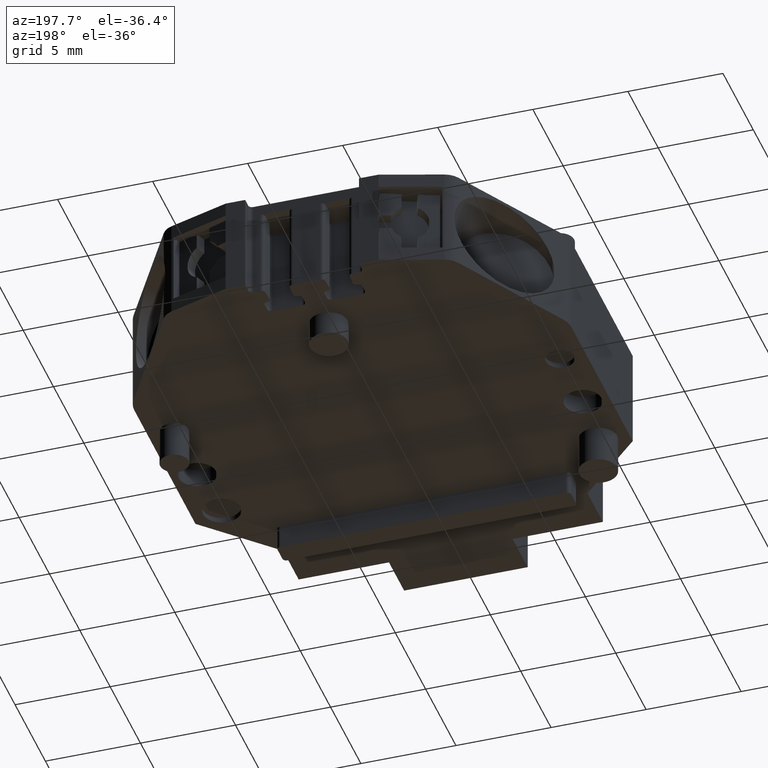
[diagram: clean part render]
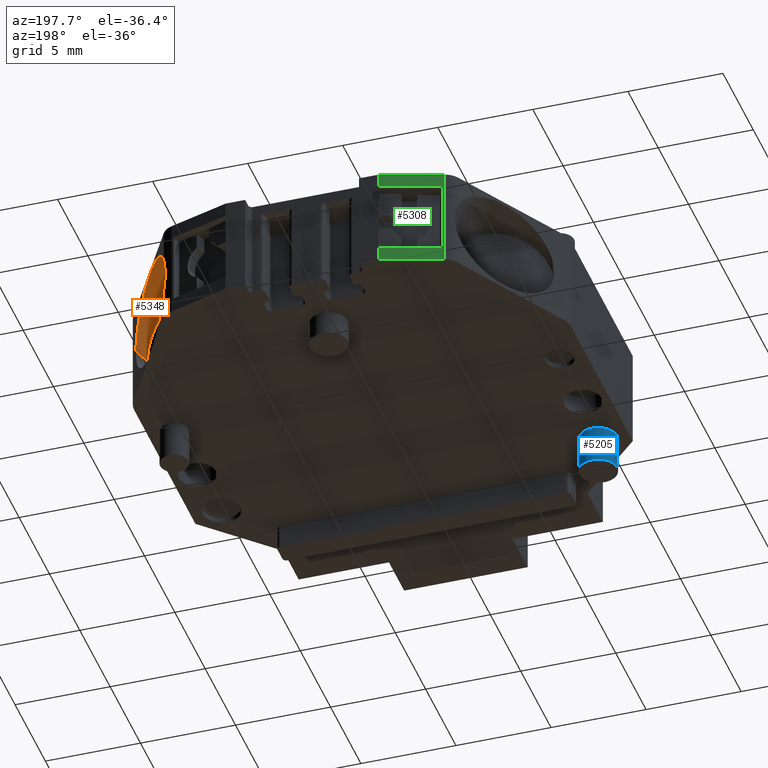
[diagram: same view with three faces highlighted in distinct colors, each labeled with its STEP entity id]
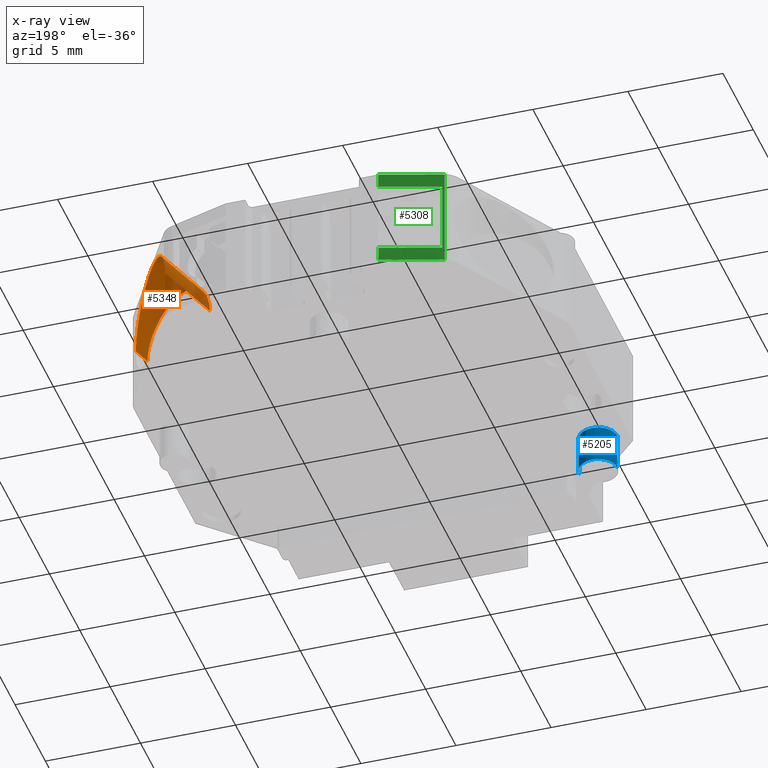
[diagram: x-ray of the same camera — body ghosted, the three highlighted faces saturated]
A machine part, auxiliary view with three faces highlighted in distinct colors.
The next image is the same camera in x-ray (body ghosted, the three faces saturated) — at least one of them is partly hidden behind the body in this view.
Their STEP definitions:

[orange] entity #5348 — the highlighted cylindrical surface (partial cylindrical patch) has radius 2.5 mm, axis along (0.3007, 0.9537, 0).
#124 = LINE ( 'NONE', #4419, #1794 ) ;
#568 = DIRECTION ( 'NONE',  ( 0.3007044655851190400, 0.9537173713302951100, 0.0000000000000000000 ) ) ;
#569 = CARTESIAN_POINT ( 'NONE',  ( 304.4442805675182100, 456.7195194426091700, -27.98000000000000000 ) ) ;
#594 = LINE ( 'NONE', #569, #1793 ) ;
#601 = DIRECTION ( 'NONE',  ( 0.3007044655851190400, 0.9537173713302951100, 0.0000000000000000000 ) ) ;
#960 = CARTESIAN_POINT ( 'NONE',  ( 301.9913673837569400, 448.9398347972008900, -22.97999999999998300 ) ) ;
#984 = CARTESIAN_POINT ( 'NONE',  ( 297.7222349468134400, 452.0274318921452200, -22.97999999999998300 ) ) ;
#989 = CARTESIAN_POINT ( 'NONE',  ( 297.7222349468134400, 452.0274318921452200, -27.98000000000000000 ) ) ;
#997 = CARTESIAN_POINT ( 'NONE',  ( 301.9913673837569400, 448.9398347972008900, -27.98000000000000000 ) ) ;
#1005 = CARTESIAN_POINT ( 'NONE',  ( 302.2932353997324000, 449.8972424968991400, -27.98000000000000000 ) ) ;
#1007 = CARTESIAN_POINT ( 'NONE',  ( 299.0290548412494300, 455.5509690692699700, -27.03180405356464500 ) ) ;
#1023 = CARTESIAN_POINT ( 'NONE',  ( 302.2932353997323400, 449.8972424968991400, -24.44197339221040400 ) ) ;
#1032 = CARTESIAN_POINT ( 'NONE',  ( 299.9390914366900300, 453.9747394492199000, -23.75812955358420800 ) ) ;
#1270 = EDGE_CURVE ( 'NONE', #4457, #4512, #2718, .T. ) ;
#1282 = EDGE_CURVE ( 'NONE', #3346, #4511, #2724, .T. ) ;
#1371 = EDGE_CURVE ( 'NONE', #3346, #4536, #4984, .T. ) ;
#1561 = ORIENTED_EDGE ( 'NONE', *, *, #4912, .T. ) ;
#1590 = ORIENTED_EDGE ( 'NONE', *, *, #1270, .F. ) ;
#1591 = ORIENTED_EDGE ( 'NONE', *, *, #1282, .T. ) ;
#1593 = ORIENTED_EDGE ( 'NONE', *, *, #1371, .F. ) ;
#1601 = ORIENTED_EDGE ( 'NONE', *, *, #4914, .F. ) ;
#1793 = VECTOR ( 'NONE', #601, 1000.000000000000100 ) ;
#1794 = VECTOR ( 'NONE', #568, 1000.000000000000100 ) ;
#1921 = EDGE_LOOP ( 'NONE', ( #1601, #1590, #1561, #1593, #1591 ) ) ;
#2145 = CARTESIAN_POINT ( 'NONE',  ( 299.0290548412494300, 455.5509690692699700, -27.03180405356464500 ) ) ;
#2224 = CARTESIAN_POINT ( 'NONE',  ( 297.7222349468134400, 452.0274318921452200, -27.98000000000000000 ) ) ;
#2287 = CARTESIAN_POINT ( 'NONE',  ( 302.2932353997324000, 449.8972424968991400, -27.98000000000000000 ) ) ;
#2293 = CARTESIAN_POINT ( 'NONE',  ( 298.8915380709113400, 455.7360056894547700, -27.98000000000000000 ) ) ;
#2336 = CARTESIAN_POINT ( 'NONE',  ( 301.9913673837569400, 448.9398347972008900, -27.98000000000000000 ) ) ;
#2393 = CARTESIAN_POINT ( 'NONE',  ( 298.8915380709113400, 455.7360056894547700, -27.98000000000000000 ) ) ;
#2398 = CARTESIAN_POINT ( 'NONE',  ( 298.9533747289055400, 455.6648079605344000, -27.33016393471966100 ) ) ;
#2399 = CARTESIAN_POINT ( 'NONE',  ( 298.9045134146838900, 455.7230147341310800, -27.65141387291902900 ) ) ;
#2406 = CARTESIAN_POINT ( 'NONE',  ( 298.8915380709113400, 455.7360056894547700, -27.81483201357363900 ) ) ;
#2424 = CARTESIAN_POINT ( 'NONE',  ( 299.0290548412494300, 455.5509690692699700, -27.03180405356464500 ) ) ;
#2427 = CARTESIAN_POINT ( 'NONE',  ( 298.9888196379449700, 455.6206584856460600, -27.17654214400966900 ) ) ;
#2718 =( BOUNDED_CURVE ( )  B_SPLINE_CURVE ( 3, ( #989, #984, #960, #997 ),
 .UNSPECIFIED., .F., .T. ) 
 B_SPLINE_CURVE_WITH_KNOTS ( ( 4, 4 ),
 ( 0.0000000000000000000, 3.141592653589793100 ),
 .UNSPECIFIED. ) 
 CURVE ( )  GEOMETRIC_REPRESENTATION_ITEM ( )  RATIONAL_B_SPLINE_CURVE ( ( 1.000000000000000000, 0.3333333333333333700, 0.3333333333333333700, 1.000000000000000000 ) ) 
 REPRESENTATION_ITEM ( '' )  );
#2724 =( BOUNDED_CURVE ( )  B_SPLINE_CURVE ( 3, ( #1007, #1032, #1023, #1005 ),
 .UNSPECIFIED., .F., .T. ) 
 B_SPLINE_CURVE_WITH_KNOTS ( ( 4, 4 ),
 ( 0.3890162787027733300, 3.141592653589793100 ),
 .UNSPECIFIED. ) 
 CURVE ( )  GEOMETRIC_REPRESENTATION_ITEM ( )  RATIONAL_B_SPLINE_CURVE ( ( 1.000000000000000000, 0.4621893152000969800, 0.4621893152000969800, 1.000000000000000000 ) ) 
 REPRESENTATION_ITEM ( '' )  );
#3141 = DIRECTION ( 'NONE',  ( 0.3007044655851190400, 0.9537173713302952200, 0.0000000000000000000 ) ) ;
#3142 = FACE_OUTER_BOUND ( 'NONE', #1921, .T. ) ;
#3150 = DIRECTION ( 'NONE',  ( -0.9537173713302944400, 0.3007044655851209300, 0.0000000000000000000 ) ) ;
#3176 = CARTESIAN_POINT ( 'NONE',  ( 302.0599871391924600, 457.4712806065720100, -27.98000000000000000 ) ) ;
#3183 = CYLINDRICAL_SURFACE ( 'NONE', #5133, 2.500000000000009800 ) ;
#3346 = VERTEX_POINT ( 'NONE', #2145 ) ;
#4419 = CARTESIAN_POINT ( 'NONE',  ( 299.6756937108667100, 458.2230417705347900, -27.98000000000000000 ) ) ;
#4457 = VERTEX_POINT ( 'NONE', #2224 ) ;
#4511 = VERTEX_POINT ( 'NONE', #2287 ) ;
#4512 = VERTEX_POINT ( 'NONE', #2336 ) ;
#4536 = VERTEX_POINT ( 'NONE', #2293 ) ;
#4912 = EDGE_CURVE ( 'NONE', #4457, #4536, #124, .T. ) ;
#4914 = EDGE_CURVE ( 'NONE', #4512, #4511, #594, .T. ) ;
#4984 = B_SPLINE_CURVE_WITH_KNOTS ( 'NONE', 3,
 ( #2424, #2427, #2398, #2399, #2406, #2393 ),
 .UNSPECIFIED., .F., .F.,
 ( 4, 2, 4 ),
 ( 1.241267076623636600E-016, 0.0004910374806217566400, 0.0009820749612433890200 ),
 .UNSPECIFIED. ) ;
#5133 = AXIS2_PLACEMENT_3D ( 'NONE', #3176, #3141, #3150 ) ;
#5348 = ADVANCED_FACE ( 'NONE', ( #3142 ), #3183, .F. ) ;

[blue] entity #5205 — the highlighted cylindrical surface (edge-blend (fillet) strip) has radius 1 mm, axis along (0, 0, 1).
#512 = DIRECTION ( 'NONE',  ( 1.000000000000000000, 0.0000000000000000000, 0.0000000000000000000 ) ) ;
#533 = DIRECTION ( 'NONE',  ( 0.0000000000000000000, 0.0000000000000000000, 1.000000000000000000 ) ) ;
#536 = FACE_OUTER_BOUND ( 'NONE', #2648, .T. ) ;
#541 = CARTESIAN_POINT ( 'NONE',  ( 281.3859378434639800, 439.2072313446219600, -32.59999999999999400 ) ) ;
#546 = CYLINDRICAL_SURFACE ( 'NONE', #1875, 0.9999999999872333200 ) ;
#623 = DIRECTION ( 'NONE',  ( 0.0000000000000000000, 0.0000000000000000000, 1.000000000000000000 ) ) ;
#633 = DIRECTION ( 'NONE',  ( 1.000000000000000000, 0.0000000000000000000, 0.0000000000000000000 ) ) ;
#647 = CARTESIAN_POINT ( 'NONE',  ( 281.3859378434639800, 439.2072313446219600, -30.63000000000000300 ) ) ;
#657 = DIRECTION ( 'NONE',  ( 1.000000000000000000, 0.0000000000000000000, 0.0000000000000000000 ) ) ;
#676 = CARTESIAN_POINT ( 'NONE',  ( 281.3859378434639800, 439.2072313446219600, -32.59999999999999400 ) ) ;
#683 = DIRECTION ( 'NONE',  ( 0.0000000000000000000, 0.0000000000000000000, 1.000000000000000000 ) ) ;
#1764 = VECTOR ( 'NONE', #2378, 1000.000000000000000 ) ;
#1774 = VECTOR ( 'NONE', #2363, 1000.000000000000000 ) ;
#1791 = CIRCLE ( 'NONE', #1802, 0.9999999999872333200 ) ;
#1802 = AXIS2_PLACEMENT_3D ( 'NONE', #676, #683, #657 ) ;
#1804 = AXIS2_PLACEMENT_3D ( 'NONE', #647, #623, #633 ) ;
#1805 = CIRCLE ( 'NONE', #1804, 0.9999999999872333200 ) ;
#1875 = AXIS2_PLACEMENT_3D ( 'NONE', #541, #533, #512 ) ;
#1987 = CARTESIAN_POINT ( 'NONE',  ( 280.3859378434767700, 439.2072313446219600, -30.63000000000000300 ) ) ;
#2007 = CARTESIAN_POINT ( 'NONE',  ( 282.3859378434512500, 439.2072313446219600, -30.63000000000000300 ) ) ;
#2046 = CARTESIAN_POINT ( 'NONE',  ( 280.3859378434767700, 439.2072313446219600, -32.59999999999999400 ) ) ;
#2320 = CARTESIAN_POINT ( 'NONE',  ( 282.3859378434512500, 439.2072313446219600, -32.59999999999999400 ) ) ;
#2363 = DIRECTION ( 'NONE',  ( 0.0000000000000000000, 0.0000000000000000000, 1.000000000000000000 ) ) ;
#2371 = LINE ( 'NONE', #2375, #1764 ) ;
#2373 = LINE ( 'NONE', #2374, #1774 ) ;
#2374 = CARTESIAN_POINT ( 'NONE',  ( 280.3859378434767700, 439.2072313446219600, -32.59999999999999400 ) ) ;
#2375 = CARTESIAN_POINT ( 'NONE',  ( 282.3859378434512500, 439.2072313446219600, -32.59999999999999400 ) ) ;
#2378 = DIRECTION ( 'NONE',  ( 0.0000000000000000000, 0.0000000000000000000, 1.000000000000000000 ) ) ;
#2612 = VERTEX_POINT ( 'NONE', #1987 ) ;
#2620 = VERTEX_POINT ( 'NONE', #2007 ) ;
#2626 = VERTEX_POINT ( 'NONE', #2046 ) ;
#2648 = EDGE_LOOP ( 'NONE', ( #4193, #4196, #4186, #4177 ) ) ;
#4177 = ORIENTED_EDGE ( 'NONE', *, *, #4908, .F. ) ;
#4186 = ORIENTED_EDGE ( 'NONE', *, *, #4935, .F. ) ;
#4193 = ORIENTED_EDGE ( 'NONE', *, *, #4953, .T. ) ;
#4196 = ORIENTED_EDGE ( 'NONE', *, *, #4906, .T. ) ;
#4537 = VERTEX_POINT ( 'NONE', #2320 ) ;
#4906 = EDGE_CURVE ( 'NONE', #2626, #2612, #2373, .T. ) ;
#4908 = EDGE_CURVE ( 'NONE', #4537, #2620, #2371, .T. ) ;
#4935 = EDGE_CURVE ( 'NONE', #2620, #2612, #1805, .T. ) ;
#4953 = EDGE_CURVE ( 'NONE', #4537, #2626, #1791, .T. ) ;
#5205 = ADVANCED_FACE ( 'NONE', ( #536 ), #546, .T. ) ;

[green] entity #5308 — the highlighted planar face has unit normal (0.3007, -0.9537, 0).
#63 = DIRECTION ( 'NONE',  ( -0.0000000000000000000, 0.0000000000000000000, 1.000000000000000000 ) ) ;
#139 = CARTESIAN_POINT ( 'NONE',  ( 287.2660676076465100, 457.0003766282129600, -29.87999999999999900 ) ) ;
#143 = LINE ( 'NONE', #160, #1728 ) ;
#146 = LINE ( 'NONE', #139, #1714 ) ;
#155 = DIRECTION ( 'NONE',  ( -0.9537169507482692300, -0.3007057995041385600, -0.0000000000000000000 ) ) ;
#160 = CARTESIAN_POINT ( 'NONE',  ( 284.2141785495933800, 456.0381197044162600, -25.35999999999999900 ) ) ;
#320 = CARTESIAN_POINT ( 'NONE',  ( 287.2660676076465100, 457.0003766282129600, -30.63000000000000300 ) ) ;
#337 = DIRECTION ( 'NONE',  ( 0.9537169507482692300, 0.3007057995041385600, 0.0000000000000000000 ) ) ;
#363 = LINE ( 'NONE', #320, #3529 ) ;
#1053 = LINE ( 'NONE', #1057, #1705 ) ;
#1057 = CARTESIAN_POINT ( 'NONE',  ( 287.2660676076465100, 457.0003766282124500, -25.35999999999999900 ) ) ;
#1072 = DIRECTION ( 'NONE',  ( 0.0000000000000000000, -0.0000000000000000000, -1.000000000000000000 ) ) ;
#1099 = VECTOR ( 'NONE', #2503, 1000.000000000000000 ) ;
#1130 = VECTOR ( 'NONE', #2021, 1000.000000000000200 ) ;
#1238 = EDGE_CURVE ( 'NONE', #3374, #4489, #2825, .T. ) ;
#1261 = EDGE_CURVE ( 'NONE', #4467, #3435, #1053, .T. ) ;
#1334 = EDGE_CURVE ( 'NONE', #4467, #4472, #146, .T. ) ;
#1344 = EDGE_CURVE ( 'NONE', #4472, #4497, #143, .T. ) ;
#1381 = EDGE_CURVE ( 'NONE', #4497, #4489, #2402, .T. ) ;
#1410 = EDGE_CURVE ( 'NONE', #4463, #3425, #2482, .T. ) ;
#1432 = EDGE_CURVE ( 'NONE', #3374, #4463, #2025, .T. ) ;
#1536 = EDGE_LOOP ( 'NONE', ( #4284, #4304, #4279, #4286, #4303, #4291, #4293, #4299 ) ) ;
#1655 = VECTOR ( 'NONE', #2782, 1000.000000000000000 ) ;
#1705 = VECTOR ( 'NONE', #1072, 1000.000000000000000 ) ;
#1714 = VECTOR ( 'NONE', #155, 1000.000000000000100 ) ;
#1728 = VECTOR ( 'NONE', #63, 1000.000000000000000 ) ;
#2010 = CARTESIAN_POINT ( 'NONE',  ( 287.2660676076465100, 457.0003766282129600, -25.33000000000000200 ) ) ;
#2021 = DIRECTION ( 'NONE',  ( -0.9537169507482248200, -0.3007057995042796100, 0.0000000000000000000 ) ) ;
#2025 = LINE ( 'NONE', #2010, #1130 ) ;
#2140 = CARTESIAN_POINT ( 'NONE',  ( 287.2660676076465100, 457.0003766282126200, -25.33000000000000200 ) ) ;
#2167 = CARTESIAN_POINT ( 'NONE',  ( 284.1081404499333900, 456.0046860200184300, -30.63000000000000300 ) ) ;
#2202 = CARTESIAN_POINT ( 'NONE',  ( 287.2660676076465100, 457.0003766282126200, -30.63000000000000300 ) ) ;
#2255 = CARTESIAN_POINT ( 'NONE',  ( 287.2660676076463300, 457.0003766282127900, -29.88000000000000300 ) ) ;
#2256 = CARTESIAN_POINT ( 'NONE',  ( 287.2660676076460500, 457.0003766282127900, -26.07999999999999800 ) ) ;
#2259 = CARTESIAN_POINT ( 'NONE',  ( 284.2141785495934400, 456.0381197044160900, -26.07999999999999800 ) ) ;
#2261 = CARTESIAN_POINT ( 'NONE',  ( 284.1081404499333900, 456.0046860200182000, -25.33000000000000200 ) ) ;
#2271 = CARTESIAN_POINT ( 'NONE',  ( 284.2141785495934400, 456.0381197044162000, -29.87999999999999900 ) ) ;
#2391 = DIRECTION ( 'NONE',  ( 0.9537169507482692300, 0.3007057995041385600, 0.0000000000000000000 ) ) ;
#2402 = LINE ( 'NONE', #2408, #3451 ) ;
#2408 = CARTESIAN_POINT ( 'NONE',  ( 287.2660676076465100, 457.0003766282129600, -26.07999999999999800 ) ) ;
#2482 = LINE ( 'NONE', #2486, #1099 ) ;
#2486 = CARTESIAN_POINT ( 'NONE',  ( 284.1081404499333300, 456.0046860200184300, -25.35999999999999900 ) ) ;
#2503 = DIRECTION ( 'NONE',  ( 0.0000000000000000000, -0.0000000000000000000, -1.000000000000000000 ) ) ;
#2782 = DIRECTION ( 'NONE',  ( 0.0000000000000000000, -0.0000000000000000000, -1.000000000000000000 ) ) ;
#2800 = CARTESIAN_POINT ( 'NONE',  ( 287.2660676076465100, 457.0003766282124500, -25.35999999999999900 ) ) ;
#2825 = LINE ( 'NONE', #2800, #1655 ) ;
#3374 = VERTEX_POINT ( 'NONE', #2140 ) ;
#3425 = VERTEX_POINT ( 'NONE', #2167 ) ;
#3435 = VERTEX_POINT ( 'NONE', #2202 ) ;
#3451 = VECTOR ( 'NONE', #2391, 1000.000000000000100 ) ;
#3529 = VECTOR ( 'NONE', #337, 1000.000000000000100 ) ;
#3794 = DIRECTION ( 'NONE',  ( 0.9537169507482692300, 0.3007057995041385600, 0.0000000000000000000 ) ) ;
#3815 = CARTESIAN_POINT ( 'NONE',  ( 287.2660676076465100, 457.0003766282129600, -25.35999999999999900 ) ) ;
#3818 = FACE_OUTER_BOUND ( 'NONE', #1536, .T. ) ;
#3826 = DIRECTION ( 'NONE',  ( 0.3007057995041386200, -0.9537169507482693400, 0.0000000000000000000 ) ) ;
#3831 = PLANE ( 'NONE',  #5080 ) ;
#4279 = ORIENTED_EDGE ( 'NONE', *, *, #1334, .F. ) ;
#4284 = ORIENTED_EDGE ( 'NONE', *, *, #1381, .F. ) ;
#4286 = ORIENTED_EDGE ( 'NONE', *, *, #1261, .T. ) ;
#4291 = ORIENTED_EDGE ( 'NONE', *, *, #1410, .F. ) ;
#4293 = ORIENTED_EDGE ( 'NONE', *, *, #1432, .F. ) ;
#4299 = ORIENTED_EDGE ( 'NONE', *, *, #1238, .T. ) ;
#4303 = ORIENTED_EDGE ( 'NONE', *, *, #5031, .F. ) ;
#4304 = ORIENTED_EDGE ( 'NONE', *, *, #1344, .F. ) ;
#4463 = VERTEX_POINT ( 'NONE', #2261 ) ;
#4467 = VERTEX_POINT ( 'NONE', #2255 ) ;
#4472 = VERTEX_POINT ( 'NONE', #2271 ) ;
#4489 = VERTEX_POINT ( 'NONE', #2256 ) ;
#4497 = VERTEX_POINT ( 'NONE', #2259 ) ;
#5031 = EDGE_CURVE ( 'NONE', #3425, #3435, #363, .T. ) ;
#5080 = AXIS2_PLACEMENT_3D ( 'NONE', #3815, #3826, #3794 ) ;
#5308 = ADVANCED_FACE ( 'NONE', ( #3818 ), #3831, .F. ) ;